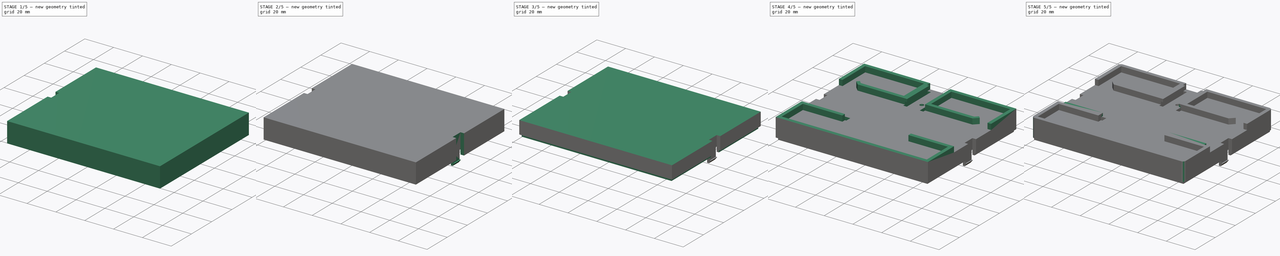
[diagram: build sequence overview — one tinted view per stage of 5, left to right]
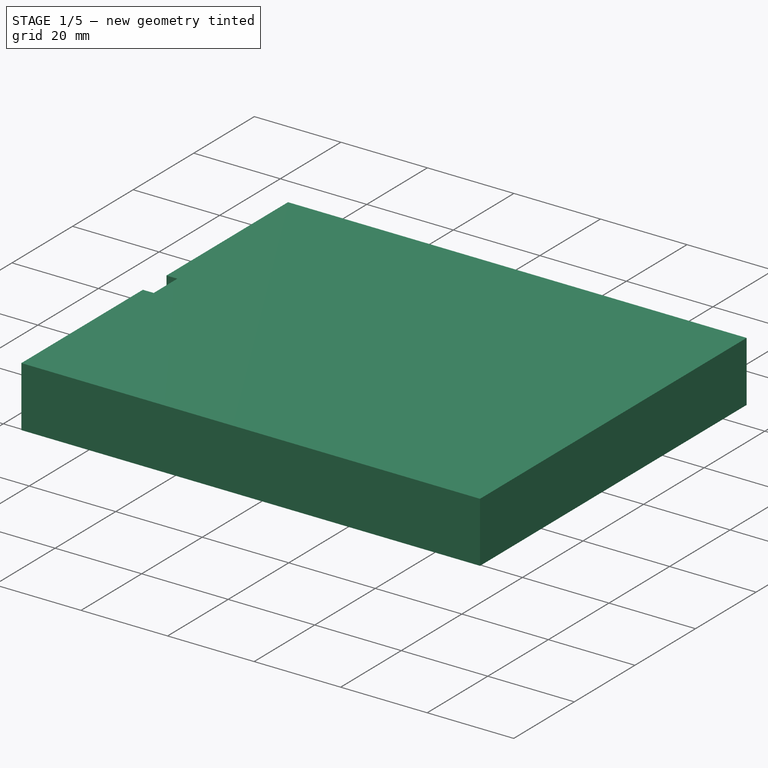
[diagram: stage 1 of 5 — iso view after this stage's code; geometry added in this stage tinted green]
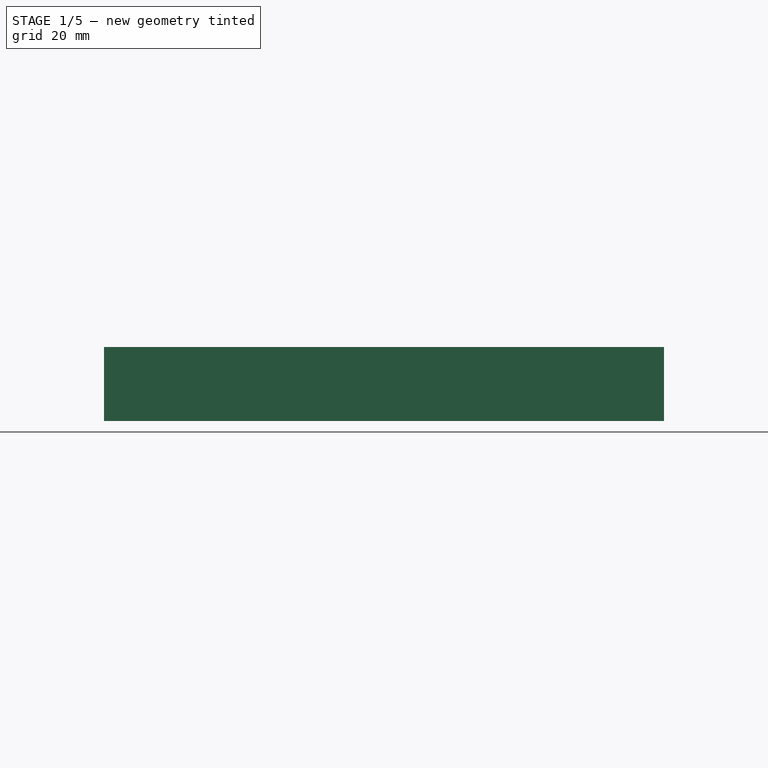
[diagram: stage 1 of 5 — front view after this stage's code; geometry added in this stage tinted green]
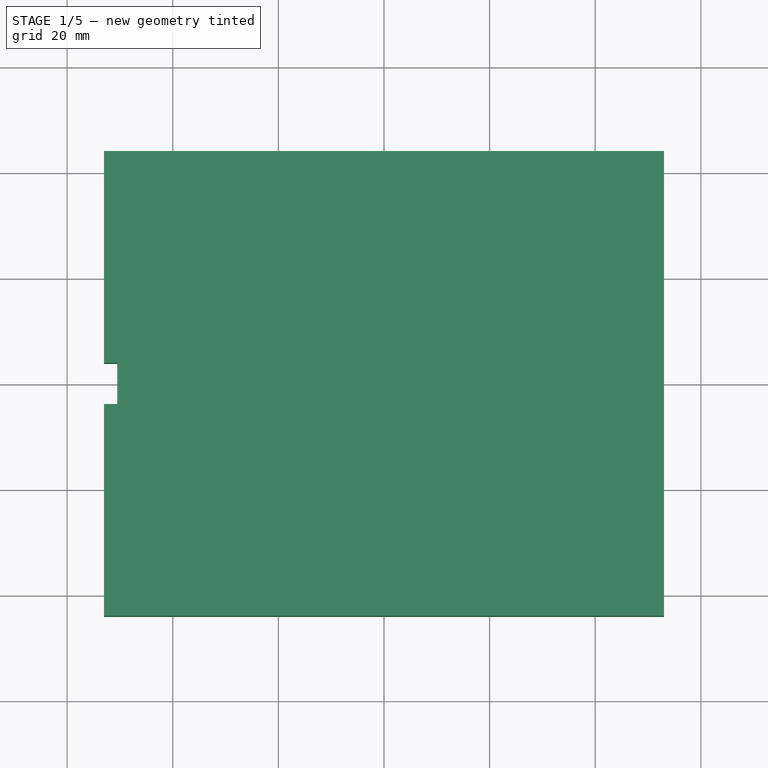
[diagram: stage 1 of 5 — top view after this stage's code; geometry added in this stage tinted green]
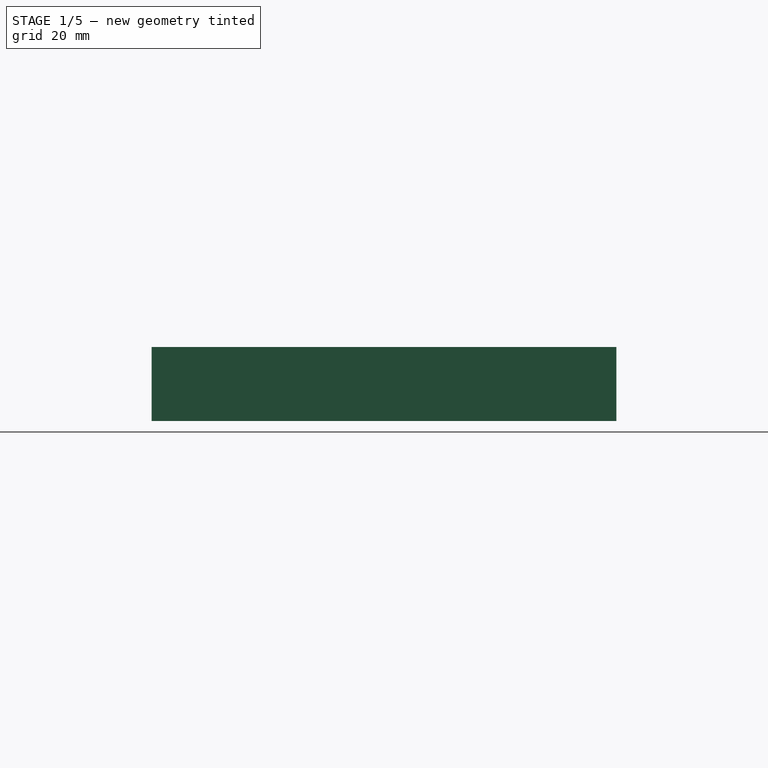
[diagram: stage 1 of 5 — right view after this stage's code; geometry added in this stage tinted green]
FCSTD DOCUMENT  (FreeCAD 1.0R39319 (Git))
Label: Under Perfect PLC
License: All rights reserved
LicenseURL: https://en.wikipedia.org/wiki/All_rights_reserved
objects: Sketcher::SketchObject×13, PartDesign::Pad×7, PartDesign::Pocket×5, PartDesign::Mirrored×2, PartDesign::Fillet×1, PartDesign::Body×1
note: 70 computed .brp shape members not serialized (recipe doc carries the construction recipe); baked Part::Feature solids carry a one-line shape summary decoded from their .brp

FEATURE [Sketcher::SketchObject] Sketch
  ArcFitTolerance = 1e-06
  AttachmentSupport = -> [XY_Plane]
  FullyConstrained = true
  MakeInternals = false
  MapMode = 5
  sketch-geometry (10):
    g0: LineSegment StartX=-53 StartY=-44 StartZ=0 EndX=53 EndY=-44 EndZ=0
    g1: LineSegment StartX=53 StartY=-44 StartZ=0 EndX=53 EndY=44 EndZ=0
    g2: LineSegment StartX=53 StartY=44 StartZ=0 EndX=-53 EndY=44 EndZ=0
    g3: LineSegment StartX=-53 StartY=44 StartZ=0 EndX=-53 EndY=-44 EndZ=0
    g4: GeomPoint [constr] X=0 Y=0 Z=0
    g5: LineSegment StartX=-50.5 StartY=-41.5 StartZ=0 EndX=50.5 EndY=-41.5 EndZ=0
    g6: LineSegment StartX=50.5 StartY=-41.5 StartZ=0 EndX=50.5 EndY=41.5 EndZ=0
    g7: LineSegment StartX=50.5 StartY=41.5 StartZ=0 EndX=-50.5 EndY=41.5 EndZ=0
    g8: LineSegment StartX=-50.5 StartY=41.5 StartZ=0 EndX=-50.5 EndY=-41.5 EndZ=0
    g9: GeomPoint [constr] X=0 Y=0 Z=0
  constraints (24):
    c: Coincident(g0,g1)
    c: Coincident(g1,g2)
    c: Coincident(g2,g3)
    c: Coincident(g3,g0)
    c: Horizontal(g0)
    c: Horizontal(g2)
    c: Vertical(g1)
    c: Vertical(g3)
    c: Symmetric(g2,g0,g4)
    c: Distance(g1,g3) = 106
    c: Distance(g0,g2) = 88
    c: Coincident(g4,g-1)
    c: Coincident(g5,g6)
    c: Coincident(g6,g7)
    c: Coincident(g7,g8)
    c: Coincident(g8,g5)
    c: Horizontal(g5)
    c: Horizontal(g7)
    c: Vertical(g6)
    c: Vertical(g8)
    c: Symmetric(g7,g5,g9)
    c: Distance(g6,g8) = 101
    c: Distance(g5,g7) = 83
    c: Coincident(g9,g4)
FEATURE [PartDesign::Pad] Pad
  Direction = (0,0,1)
  Length = 14
  Length2 = 10
  Profile = -> Sketch [Edge3,Edge4,Edge1,Edge2]
  ReferenceAxis = -> Sketch [N_Axis]
  Refine = true
  Suppressed = false
  Type = 0
FEATURE [PartDesign::Pocket] Pocket
  BaseFeature = -> Pad
  Direction = (0,0,-1)
  Length = 7.7
  Length2 = 5
  Profile = -> Sketch [Edge8,Edge5,Edge6,Edge7]
  ReferenceAxis = -> Sketch [N_Axis]
  Refine = true
  Reversed = true
  Suppressed = false
  Type = 0
FEATURE [Sketcher::SketchObject] Sketch001
  ArcFitTolerance = 1e-06
  AttachmentSupport = -> [Pocket]
  ExternalGeometry = -> [Pocket]
  FullyConstrained = true
  MakeInternals = false
  MapMode = 5
  Placement = pos=(0,0,0) rot=(1,0,0;3.14159rad)
  sketch-geometry (4):
    g0: LineSegment StartX=-53 StartY=-3.9 StartZ=0 EndX=-50.5 EndY=-3.9 EndZ=0
    g1: LineSegment StartX=-50.5 StartY=-3.9 StartZ=0 EndX=-50.5 EndY=3.9 EndZ=0
    g2: LineSegment StartX=-50.5 StartY=3.9 StartZ=0 EndX=-53 EndY=3.9 EndZ=0
    g3: LineSegment StartX=-53 StartY=3.9 StartZ=0 EndX=-53 EndY=-3.9 EndZ=0
  constraints (11):
    c: Coincident(g0,g1)
    c: Coincident(g1,g2)
    c: Coincident(g2,g3)
    c: Coincident(g3,g0)
    c: Horizontal(g0)
    c: Horizontal(g2)
    c: Vertical(g3)
    c: PointOnObject(g0,g-4)
    c: PointOnObject(g1,g-3)
    c: Symmetric(g0,g1,g-1)
    c: Distance(g3,g3) = 7.8
FEATURE [PartDesign::Pocket] Pocket001
  BaseFeature = -> Pocket
  Direction = (0,0,1)
  Length = 5
  Length2 = 5
  Profile = -> Sketch001
  ReferenceAxis = -> Sketch001 [N_Axis]
  Refine = true
  Suppressed = false
  Type = 1
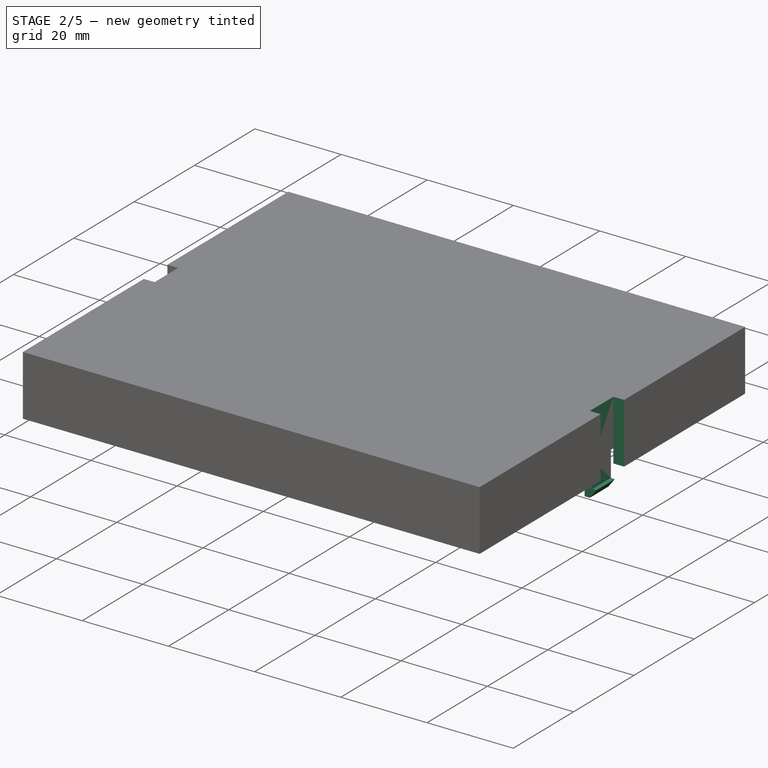
[diagram: stage 2 of 5 — iso view after this stage's code; geometry added in this stage tinted green]
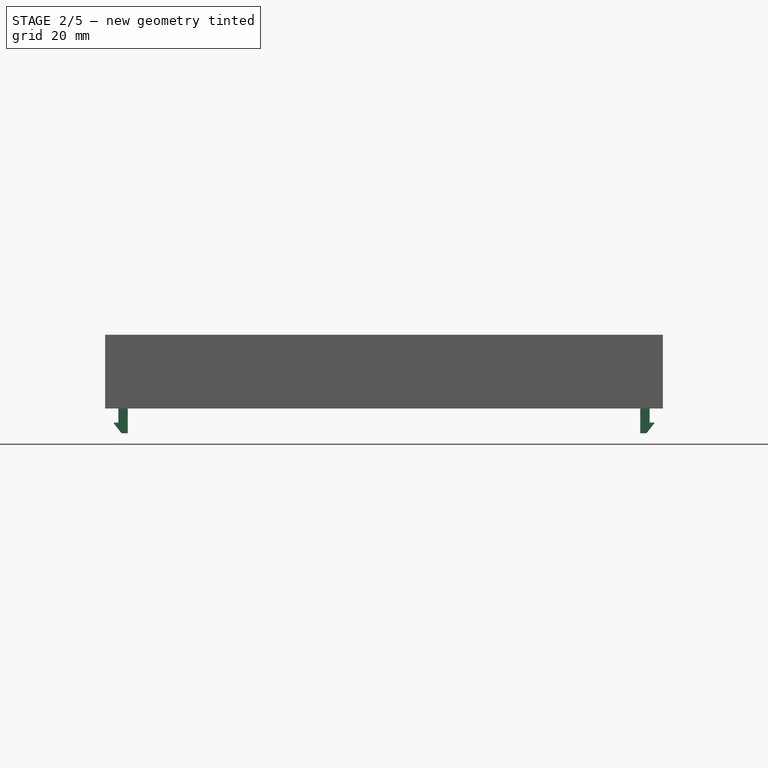
[diagram: stage 2 of 5 — front view after this stage's code; geometry added in this stage tinted green]
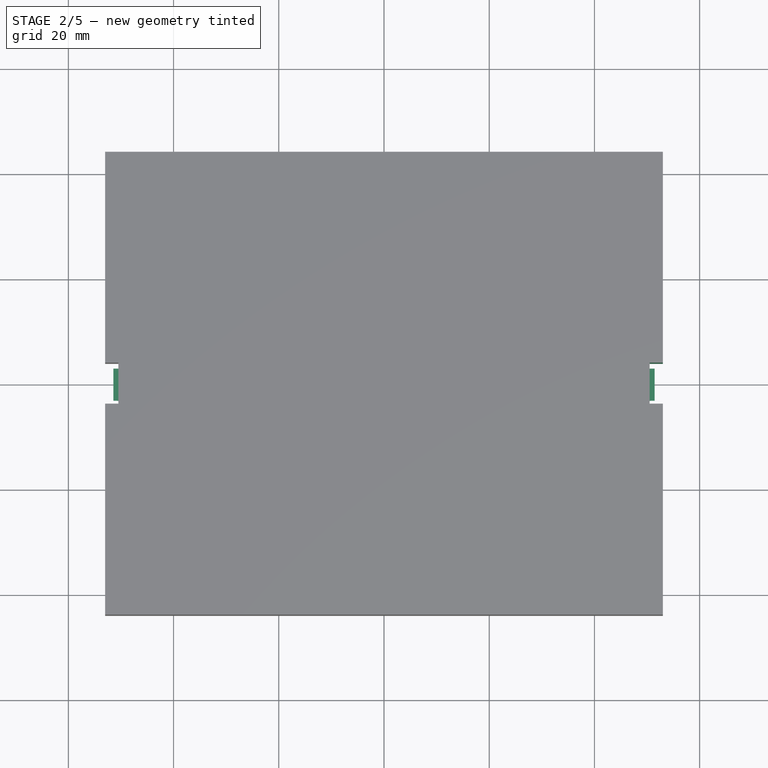
[diagram: stage 2 of 5 — top view after this stage's code; geometry added in this stage tinted green]
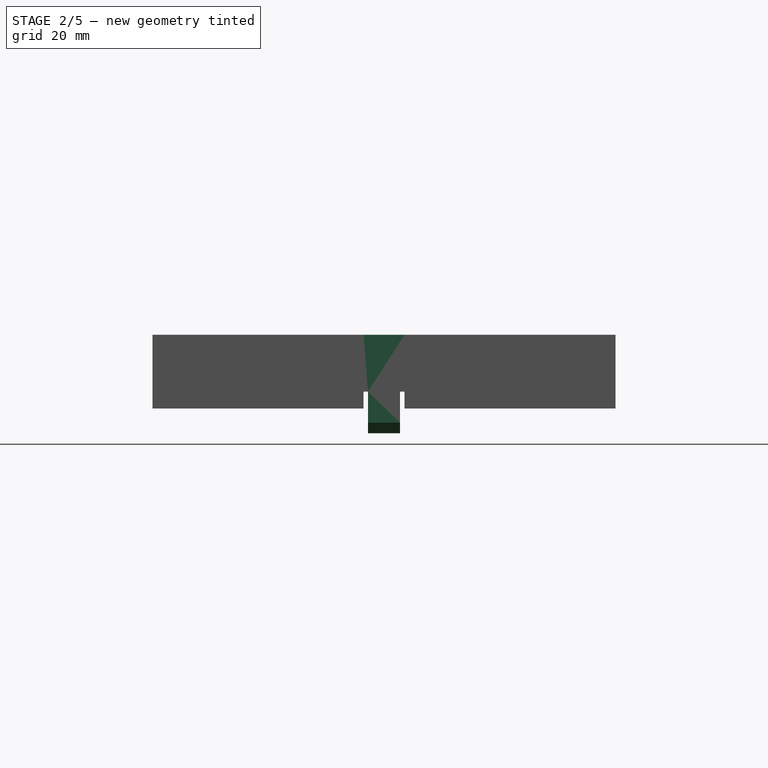
[diagram: stage 2 of 5 — right view after this stage's code; geometry added in this stage tinted green]
FEATURE [Sketcher::SketchObject] Sketch002
  ArcFitTolerance = 1e-06
  AttachmentSupport = -> [Pocket001]
  ExternalGeometry = -> [Pocket001]
  FullyConstrained = true
  MakeInternals = false
  MapMode = 5
  Placement = pos=(0,0,7.7) rot=(1,0,0;3.14159rad)
  sketch-geometry (4):
    g0: LineSegment StartX=-50.5 StartY=5.5 StartZ=0 EndX=-50.5 EndY=-5.5 EndZ=0
    g1: LineSegment StartX=-50.5 StartY=-5.5 StartZ=0 EndX=-48.7 EndY=-5.5 EndZ=0
    g2: LineSegment StartX=-48.7 StartY=-5.5 StartZ=0 EndX=-48.7 EndY=5.5 EndZ=0
    g3: LineSegment StartX=-48.7 StartY=5.5 StartZ=0 EndX=-50.5 EndY=5.5 EndZ=0
  constraints (11):
    c: Coincident(g0,g1)
    c: Coincident(g1,g2)
    c: Coincident(g2,g3)
    c: Coincident(g3,g0)
    c: Vertical(g0)
    c: Horizontal(g1)
    c: Horizontal(g3)
    c: PointOnObject(g0,g-4)
    c: Symmetric(g1,g2,g-1)
    c: Distance(g0,g0) = 11
    c: DistanceX(g3,g3) = 1.8
FEATURE [PartDesign::Pad] Pad001
  BaseFeature = -> Pocket001
  Direction = (0,0,-1)
  Length = 4.5
  Length2 = 10
  Profile = -> Sketch002
  ReferenceAxis = -> Sketch002 [N_Axis]
  Refine = true
  Suppressed = false
  Type = 0
FEATURE [Sketcher::SketchObject] Sketch003
  ArcFitTolerance = 1e-06
  AttachmentSupport = -> [XZ_Plane]
  ExternalGeometry = -> [Pad001]
  FullyConstrained = true
  MakeInternals = false
  MapMode = 5
  Placement = pos=(0,0,0) rot=(1,0,0;1.5708rad)
  sketch-geometry (6):
    g0: LineSegment StartX=-48.7 StartY=3.2 StartZ=0 EndX=-48.7 EndY=-4.7 EndZ=0
    g1: LineSegment StartX=-48.7 StartY=-4.7 StartZ=0 EndX=-49.9 EndY=-4.7 EndZ=0
    g2: LineSegment StartX=-49.9 StartY=-4.7 StartZ=0 EndX=-51.45 EndY=-2.7 EndZ=0
    g3: LineSegment StartX=-51.45 StartY=-2.7 StartZ=0 EndX=-50.5 EndY=-2.7 EndZ=0
    g4: LineSegment StartX=-50.5 StartY=-2.7 StartZ=0 EndX=-50.5 EndY=3.2 EndZ=0
    g5: LineSegment StartX=-50.5 StartY=3.2 StartZ=0 EndX=-48.7 EndY=3.2 EndZ=0
  constraints (17):
    c: Coincident(g0,g-4)
    c: Vertical(g0)
    c: Coincident(g1,g0)
    c: Coincident(g2,g1)
    c: Coincident(g3,g2)
    c: Horizontal(g3)
    c: Coincident(g4,g3)
    c: Coincident(g4,g-3)
    c: PointOnObject(g5,g0)
    c: Horizontal(g1)
    c: Horizontal(g5)
    c: Coincident(g5,g4)
    c: DistanceY(g0,g0) = 7.9
    c: Vertical(g4)
    c: DistanceX(g2,g0) = 2.75
    c: Distance(g3,g1) = 2
    c: Distance(g1,g1) = 1.2
FEATURE [PartDesign::Pad] Pad002
  BaseFeature = -> Pad001
  Direction = (0,-1,2e-16)
  Length = 6.1
  Length2 = 10
  Midplane = true
  Profile = -> Sketch003
  ReferenceAxis = -> Sketch003 [N_Axis]
  Refine = true
  Suppressed = false
  Type = 0
FEATURE [PartDesign::Mirrored] Mirrored
  BaseFeature = -> Pad002
  MirrorPlane = -> Sketch002 [V_Axis]
  Originals = -> [Pad001,Pad002,Pocket001]
  Refine = true
  Suppressed = false
  TransformMode = 0
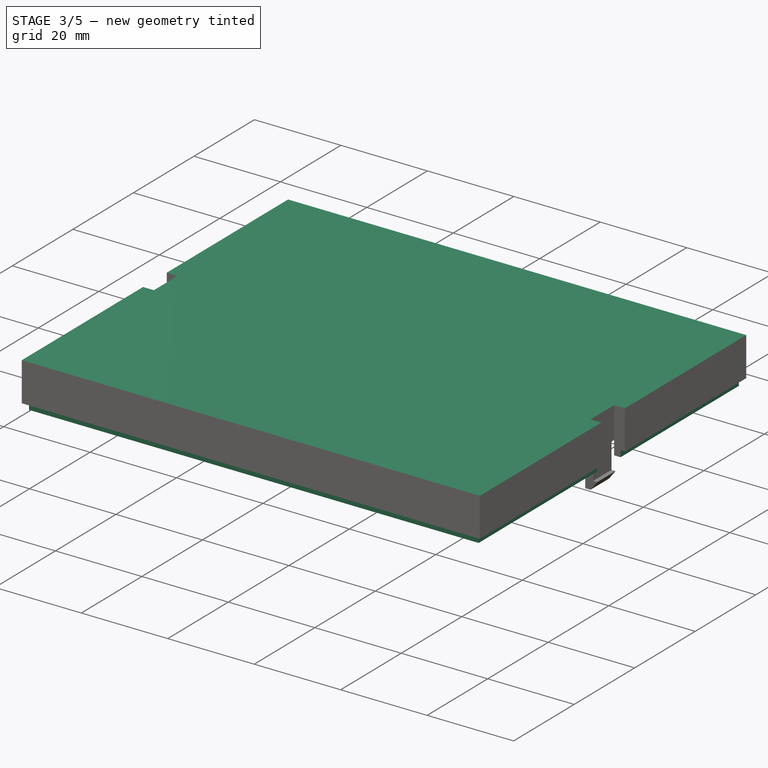
[diagram: stage 3 of 5 — iso view after this stage's code; geometry added in this stage tinted green]
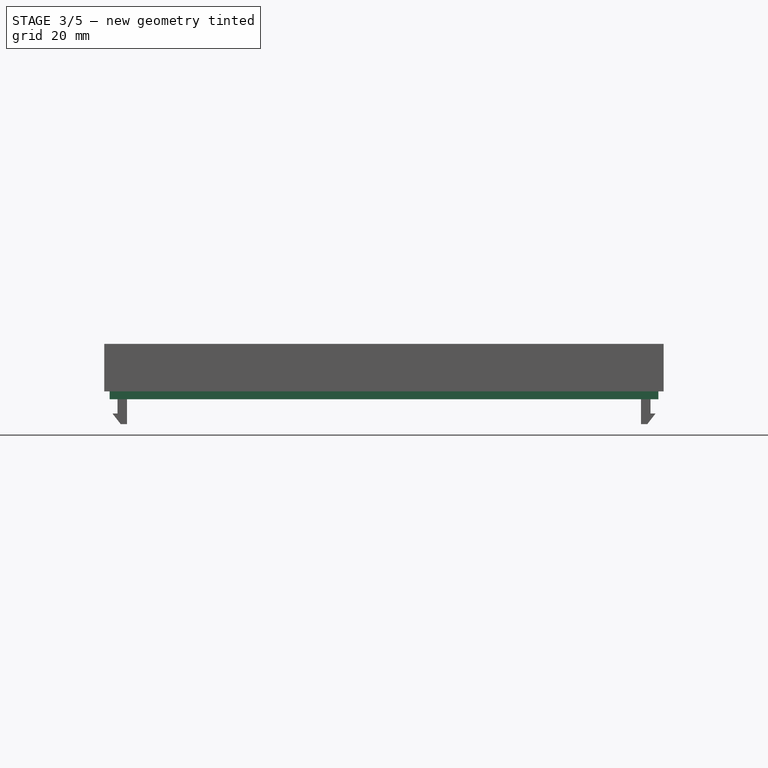
[diagram: stage 3 of 5 — front view after this stage's code; geometry added in this stage tinted green]
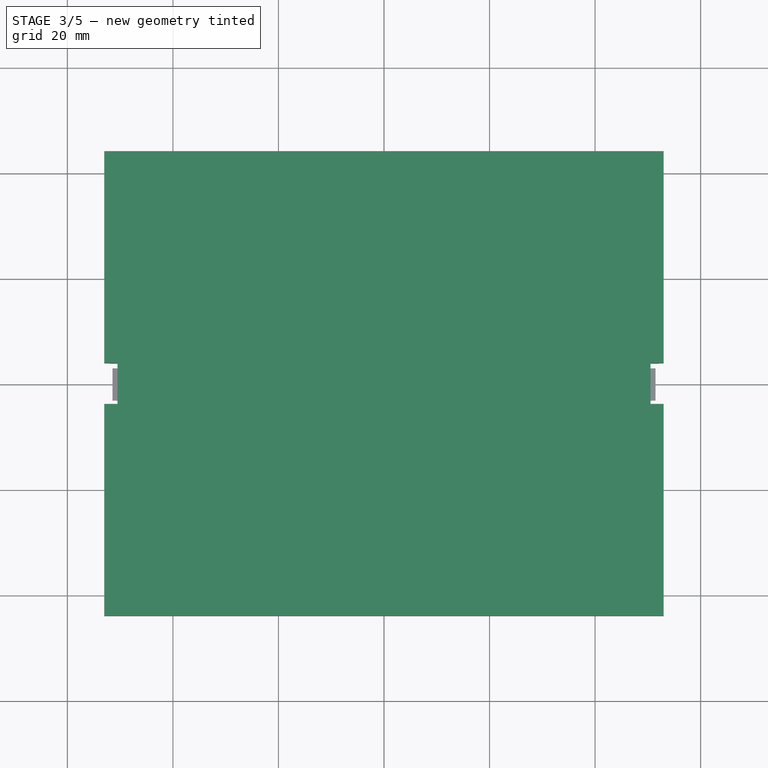
[diagram: stage 3 of 5 — top view after this stage's code; geometry added in this stage tinted green]
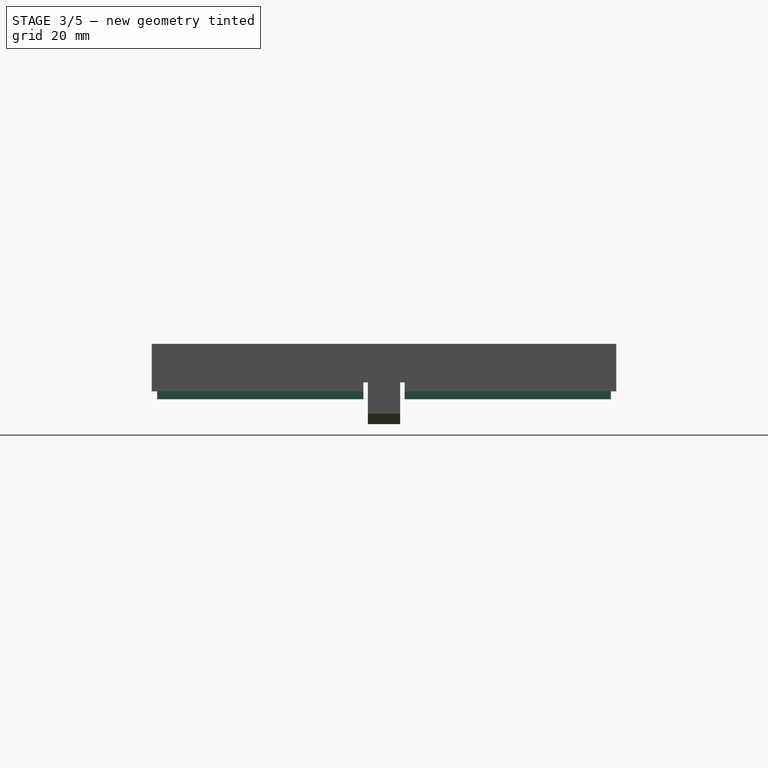
[diagram: stage 3 of 5 — right view after this stage's code; geometry added in this stage tinted green]
FEATURE [Sketcher::SketchObject] Sketch004
  ArcFitTolerance = 1e-06
  AttachmentSupport = -> [Mirrored]
  FullyConstrained = true
  MakeInternals = false
  MapMode = 5
  Placement = pos=(-53,0,0) rot=(0.57735,-0.57735,-0.57735;2.0944rad)
FEATURE [Sketcher::SketchObject] Sketch005
  ArcFitTolerance = 1e-06
  AttachmentSupport = -> [Mirrored]
  ExternalGeometry = -> [Mirrored]
  FullyConstrained = true
  MakeInternals = false
  MapMode = 5
  Placement = pos=(0,0,0) rot=(1,0,0;3.14159rad)
  sketch-geometry (8):
    g0: LineSegment StartX=-53 StartY=44 StartZ=0 EndX=-53 EndY=-44 EndZ=0
    g1: LineSegment StartX=-53 StartY=-44 StartZ=0 EndX=53 EndY=-44 EndZ=0
    g2: LineSegment StartX=53 StartY=-44 StartZ=0 EndX=53 EndY=44 EndZ=0
    g3: LineSegment StartX=53 StartY=44 StartZ=0 EndX=-53 EndY=44 EndZ=0
    g4: LineSegment StartX=-52 StartY=43 StartZ=0 EndX=-52 EndY=-43 EndZ=0
    g5: LineSegment StartX=-52 StartY=-43 StartZ=0 EndX=52 EndY=-43 EndZ=0
    g6: LineSegment StartX=52 StartY=-43 StartZ=0 EndX=52 EndY=43 EndZ=0
    g7: LineSegment StartX=52 StartY=43 StartZ=0 EndX=-52 EndY=43 EndZ=0
  constraints (20):
    c: Coincident(g0,g1)
    c: Coincident(g1,g2)
    c: Coincident(g2,g3)
    c: Coincident(g3,g0)
    c: Vertical(g0)
    c: Vertical(g2)
    c: Horizontal(g1)
    c: Horizontal(g3)
    c: Coincident(g0,g-3)
    c: Coincident(g1,g-4)
    c: Coincident(g4,g5)
    c: Coincident(g5,g6)
    c: Coincident(g6,g7)
    c: Coincident(g7,g4)
    c: Vertical(g4)
    c: Horizontal(g7)
    c: Distance(g6,g2) = 1
    c: Distance(g1,g5) = 1
    c: Symmetric(g5,g6,g-1)
    c: Symmetric(g5,g4,g-2)
FEATURE [PartDesign::Pocket] Pocket002
  BaseFeature = -> Mirrored
  Direction = (0,0,1)
  Length = 1.5
  Length2 = 5
  Profile = -> Sketch005
  ReferenceAxis = -> Sketch005 [N_Axis]
  Refine = true
  Suppressed = false
  Type = 0
FEATURE [Sketcher::SketchObject] Sketch006
  ArcFitTolerance = 1e-06
  AttachmentSupport = -> [Pocket002]
  FullyConstrained = true
  MakeInternals = false
  MapMode = 5
  Placement = pos=(0,0,7.7) rot=(1,0,0;3.14159rad)
  sketch-geometry (4):
    g0: Circle CenterX=42.5 CenterY=25 CenterZ=0 NormalX=0 NormalY=0 NormalZ=1 AngleXU=0 Radius=1.2
    g1: Circle CenterX=-42.5 CenterY=-25 CenterZ=0 NormalX=0 NormalY=0 NormalZ=1 AngleXU=0 Radius=1.2
    g2: Circle CenterX=-42.5 CenterY=-25 CenterZ=0 NormalX=0 NormalY=0 NormalZ=1 AngleXU=0 Radius=2.5
    g3: Circle CenterX=42.5 CenterY=25 CenterZ=0 NormalX=0 NormalY=0 NormalZ=1 AngleXU=0 Radius=2.5
  constraints (10):
    c: Equal(g0,g1)
    c: Diameter(g0) = 2.4
    c: Diameter(g2) = 5
    c: Coincident(g2,g1)
    c: Coincident(g3,g0)
    c: Equal(g2,g3)
    c: Distance(g1,g-1) = 25
    c: Distance(g1,g-2) = 42.5
    c: Distance(g0,g-1) = 25
    c: Distance(g0,g-2) = 42.5
FEATURE [PartDesign::Pad] Pad003
  BaseFeature = -> Pocket002
  Direction = (0,0,-1)
  Length = 6
  Length2 = 10
  Profile = -> Sketch006 [Edge3,Edge2,Edge1,Edge4]
  ReferenceAxis = -> Sketch006 [N_Axis]
  Refine = true
  Suppressed = false
  Type = 0
FEATURE [Sketcher::SketchObject] Sketch008
  ArcFitTolerance = 1e-06
  AttachmentSupport = -> [Pad003]
  ExternalGeometry = -> [Pad003]
  FullyConstrained = true
  MakeInternals = false
  MapMode = 5
  Placement = pos=(0,0,14) rot=(0,0,1;0rad)
  sketch-geometry (39):
    g0: LineSegment StartX=-53 StartY=18.9 StartZ=0 EndX=-50.5 EndY=18.9 EndZ=0
    g1: LineSegment StartX=-50.5 StartY=18.9 StartZ=0 EndX=-50.5 EndY=41.5 EndZ=0
    g2: LineSegment StartX=-50.5 StartY=41.5 StartZ=0 EndX=-9.5 EndY=41.5 EndZ=0
    g3: LineSegment StartX=-9.5 StartY=41.5 StartZ=0 EndX=-9.5 EndY=21.4 EndZ=0
    g4: LineSegment StartX=-9.5 StartY=21.4 StartZ=0 EndX=-39.5 EndY=21.4 EndZ=0
    g5: LineSegment StartX=-39.5 StartY=21.4 StartZ=0 EndX=-41.5 EndY=23.4 EndZ=0
    g6: LineSegment StartX=-41.5 StartY=23.4 StartZ=0 EndX=-43 EndY=21.9 EndZ=0
    g7: LineSegment StartX=-43 StartY=21.9 StartZ=0 EndX=-40 EndY=18.9 EndZ=0
    g8: LineSegment StartX=-40 StartY=18.9 StartZ=0 EndX=-7 EndY=18.9 EndZ=0
    g9: LineSegment StartX=-7 StartY=18.9 StartZ=0 EndX=-7 EndY=44 EndZ=0
    g10: LineSegment StartX=-7 StartY=44 StartZ=0 EndX=-53 EndY=44 EndZ=0
    g11: LineSegment StartX=-53 StartY=44 StartZ=0 EndX=-53 EndY=18.9 EndZ=0
    g12: LineSegment [constr] StartX=-50.5 StartY=18.9 StartZ=0 EndX=-40 EndY=18.9 EndZ=0
    g13: LineSegment StartX=-23 StartY=-20.5 StartZ=0 EndX=-23 EndY=-18 EndZ=0
    g14: LineSegment StartX=-23 StartY=-18 StartZ=0 EndX=-53 EndY=-18 EndZ=0
    g15: LineSegment StartX=-53 StartY=-18 StartZ=0 EndX=-53 EndY=-44 EndZ=0
    g16: LineSegment StartX=0 StartY=-41.5 StartZ=0 EndX=-50.5 EndY=-41.5 EndZ=0
    g17: LineSegment StartX=-50.5 StartY=-41.5 StartZ=0 EndX=-50.5 EndY=-20.5 EndZ=0
    g18: LineSegment StartX=-50.5 StartY=-20.5 StartZ=0 EndX=-23 EndY=-20.5 EndZ=0
    g19: LineSegment StartX=53 StartY=18.9 StartZ=0 EndX=50.5 EndY=18.9 EndZ=0
    g20: LineSegment StartX=50.5 StartY=18.9 StartZ=0 EndX=50.5 EndY=41.5 EndZ=0
    g21: LineSegment StartX=50.5 StartY=41.5 StartZ=0 EndX=9.5 EndY=41.5 EndZ=0
    g22: LineSegment StartX=9.5 StartY=41.5 StartZ=0 EndX=9.5 EndY=21.4 EndZ=0
    g23: LineSegment StartX=9.5 StartY=21.4 StartZ=0 EndX=39.5 EndY=21.4 EndZ=0
    g24: LineSegment StartX=39.5 StartY=21.4 StartZ=0 EndX=41.5 EndY=23.4 EndZ=0
    g25: LineSegment StartX=41.5 StartY=23.4 StartZ=0 EndX=43 EndY=21.9 EndZ=0
    g26: LineSegment StartX=43 StartY=21.9 StartZ=0 EndX=40 EndY=18.9 EndZ=0
    g27: LineSegment StartX=40 StartY=18.9 StartZ=0 EndX=7 EndY=18.9 EndZ=0
    g28: LineSegment StartX=7 StartY=18.9 StartZ=0 EndX=7 EndY=44 EndZ=0
    g29: LineSegment StartX=7 StartY=44 StartZ=0 EndX=53 EndY=44 EndZ=0
    g30: LineSegment StartX=53 StartY=44 StartZ=0 EndX=53 EndY=18.9 EndZ=0
    g31: LineSegment [constr] StartX=50.5 StartY=18.9 StartZ=0 EndX=40 EndY=18.9 EndZ=0
    g32: LineSegment StartX=23 StartY=-20.5 StartZ=0 EndX=23 EndY=-18 EndZ=0
    g33: LineSegment StartX=23 StartY=-18 StartZ=0 EndX=53 EndY=-18 EndZ=0
    g34: LineSegment StartX=53 StartY=-18 StartZ=0 EndX=53 EndY=-44 EndZ=0
    g35: LineSegment StartX=0 StartY=-41.5 StartZ=0 EndX=50.5 EndY=-41.5 EndZ=0
    g36: LineSegment StartX=50.5 StartY=-41.5 StartZ=0 EndX=50.5 EndY=-20.5 EndZ=0
    g37: LineSegment StartX=50.5 StartY=-20.5 StartZ=0 EndX=23 EndY=-20.5 EndZ=0
    g38: LineSegment StartX=-53 StartY=-44 StartZ=0 EndX=53 EndY=-44 EndZ=0
  constraints (110):
    c: Coincident(g0,g1)
    c: Vertical(g1)
    c: Coincident(g1,g2)
    c: Horizontal(g2)
    c: Coincident(g2,g3)
    c: Vertical(g3)
    c: Coincident(g3,g4)
    c: Horizontal(g4)
    c: Coincident(g4,g5)
    c: Coincident(g5,g6)
    c: Coincident(g6,g7)
    c: Coincident(g7,g8)
    c: Horizontal(g8)
    c: Coincident(g8,g9)
    c: Vertical(g9)
    c: Coincident(g9,g10)
    c: Coincident(g10,g11)
    c: Coincident(g11,g0)
    c: Horizontal(g0)
    c: Coincident(g12,g0)
    c: Coincident(g12,g7)
    c: Horizontal(g12)
    c: Distance(g0,g0) = 2.5
    c: Parallel(g5,g7)
    c: Distance(g10,g2) = 2.5
    c: Distance(g9,g3) = 2.5
    c: DistanceX(g10,g10) = 46
    c: DistanceX(g6,g8) = 36
    c: DistanceX(g4,g4) = 30
    c: Distance(g4,g8) = 2.5
    c: DistanceX(g8,g8) = 33
    c: Angle(g8,g7) = 2.35619
    c: Angle(g7,g6) = 1.5708
    c: Coincident(g10,g-4)
    c: Horizontal(g10)
    c: Vertical(g11)
    c: Distance(g-5,g0) = 15
    c: Vertical(g13)
    c: Coincident(g13,g14)
    c: PointOnObject(g14,g-6)
    c: Horizontal(g14)
    c: Coincident(g14,g15)
    c: Coincident(g15,g-7)
    c: PointOnObject(g16,g-2)
    c: Horizontal(g16)
    c: Coincident(g16,g17)
    c: Vertical(g17)
    c: Coincident(g17,g18)
    c: Coincident(g18,g13)
    c: Horizontal(g18)
    c: Distance(g15,g17) = 2.5
    c: DistanceY(g13,g13) = 2.5
    c: Distance(g15,g14) = 26
    c: Distance(g13,g15) = 30
    c: Coincident(g19,g20)
    c: Vertical(g20)
    c: Coincident(g20,g21)
    c: Horizontal(g21)
    c: Coincident(g21,g22)
    c: Vertical(g22)
    c: Coincident(g22,g23)
    c: Horizontal(g23)
    c: Coincident(g23,g24)
    c: Coincident(g24,g25)
    c: Coincident(g25,g26)
    c: Coincident(g26,g27)
    c: Horizontal(g27)
    c: Coincident(g27,g28)
    c: Vertical(g28)
    c: Coincident(g28,g29)
    c: Coincident(g29,g30)
    c: Coincident(g30,g19)
    c: Horizontal(g19)
    c: Coincident(g31,g19)
    c: Coincident(g31,g26)
    c: Horizontal(g31)
    c: Distance(g19,g19) = 2.5
    c: Parallel(g24,g26)
    c: Distance(g29,g21) = 2.5
    c: Distance(g28,g22) = 2.5
    c: Distance(g23,g27) = 2.5
    c: Angle(g27,g26) = -2.35619
    c: Angle(g26,g25) = -1.5708
    c: Horizontal(g29)
    c: Vertical(g30)
    c: Vertical(g32)
    c: Coincident(g32,g33)
    c: Horizontal(g33)
    c: Coincident(g33,g34)
    c: Horizontal(g35)
    c: Coincident(g35,g36)
    c: Vertical(g36)
    c: Coincident(g36,g37)
    c: Coincident(g37,g32)
    c: Horizontal(g37)
    c: Distance(g34,g36) = 2.5
    c: Distance(g34,g33) = 26
    c: Distance(g32,g34) = 30
    c: Coincident(g38,g34)
    c: Coincident(g34,g-8)
    c: PointOnObject(g33,g-8)
    c: Coincident(g35,g16)
    c: Symmetric(g27,g8,g-2)
    c: Equal(g7,g26)
    c: Equal(g27,g8)
    c: Equal(g23,g4)
    c: Equal(g36,g17)
    c: Coincident(g38,g15)
    c: Distance(g38,g35) = 2.5
    c: Coincident(g29,g-9)
FEATURE [Sketcher::SketchObject] Sketch009
  ArcFitTolerance = 1e-06
  AttachmentSupport = -> [Pad003]
  ExternalGeometry = -> [Pad003]
  FullyConstrained = true
  MakeInternals = false
  MapMode = 5
  Placement = pos=(0,0,14) rot=(0,0,1;0rad)
  sketch-geometry (4):
    g0: LineSegment StartX=-53 StartY=-44 StartZ=0 EndX=53 EndY=-44 EndZ=0
    g1: LineSegment StartX=53 StartY=-44 StartZ=0 EndX=53 EndY=44 EndZ=0
    g2: LineSegment StartX=53 StartY=44 StartZ=0 EndX=-53 EndY=44 EndZ=0
    g3: LineSegment StartX=-53 StartY=44 StartZ=0 EndX=-53 EndY=-44 EndZ=0
  constraints (10):
    c: Coincident(g0,g1)
    c: Coincident(g1,g2)
    c: Coincident(g2,g3)
    c: Coincident(g3,g0)
    c: Horizontal(g0)
    c: Horizontal(g2)
    c: Vertical(g1)
    c: Vertical(g3)
    c: Coincident(g0,g-3)
    c: Coincident(g1,g-4)
FEATURE [PartDesign::Pocket] Pocket003
  BaseFeature = -> Pad003
  Direction = (0,0,-1)
  Length = 3.5
  Length2 = 5
  Profile = -> Sketch009
  ReferenceAxis = -> Sketch009 [N_Axis]
  Refine = true
  Suppressed = false
  Type = 0
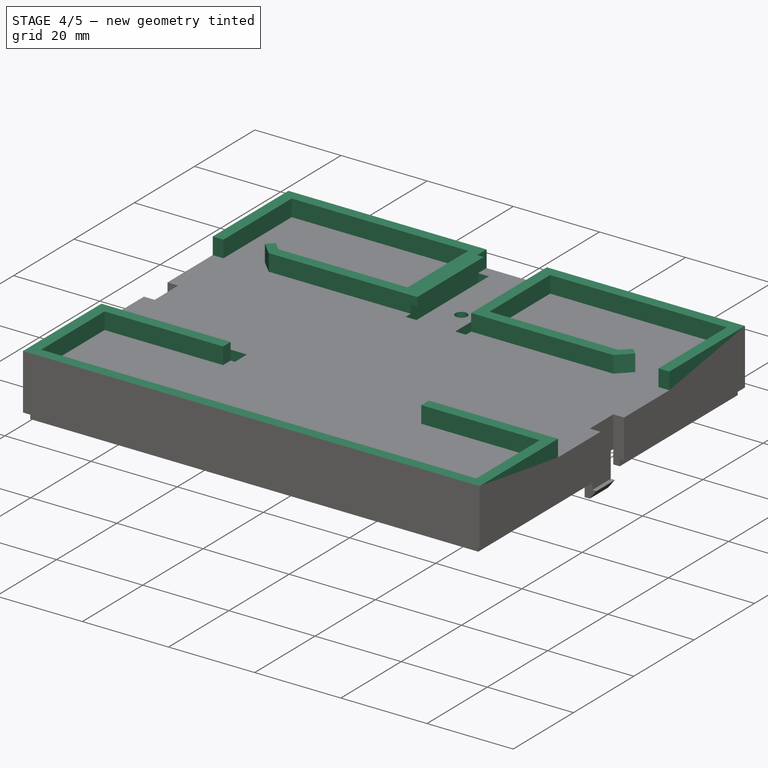
[diagram: stage 4 of 5 — iso view after this stage's code; geometry added in this stage tinted green]
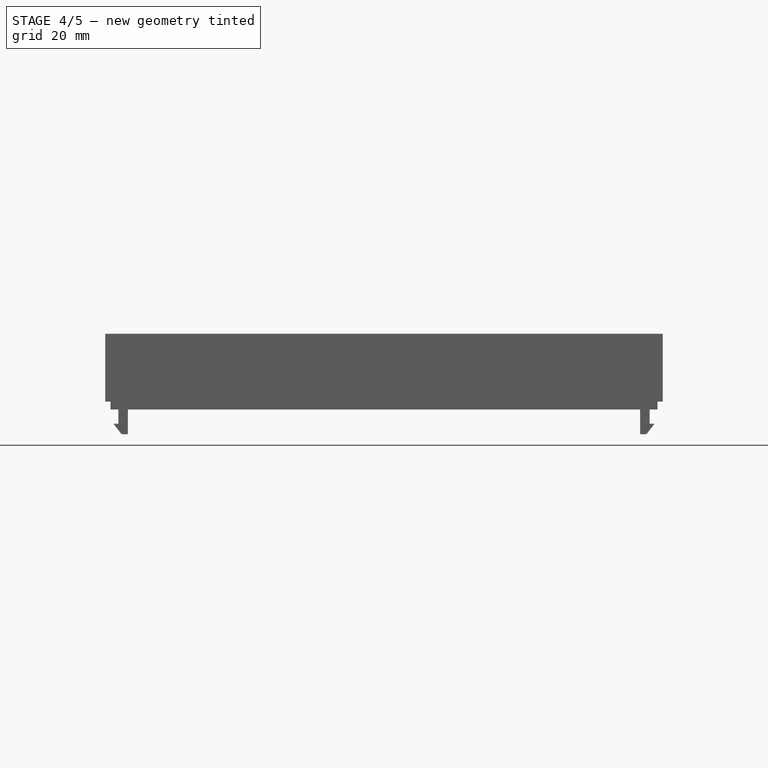
[diagram: stage 4 of 5 — front view after this stage's code; geometry added in this stage tinted green]
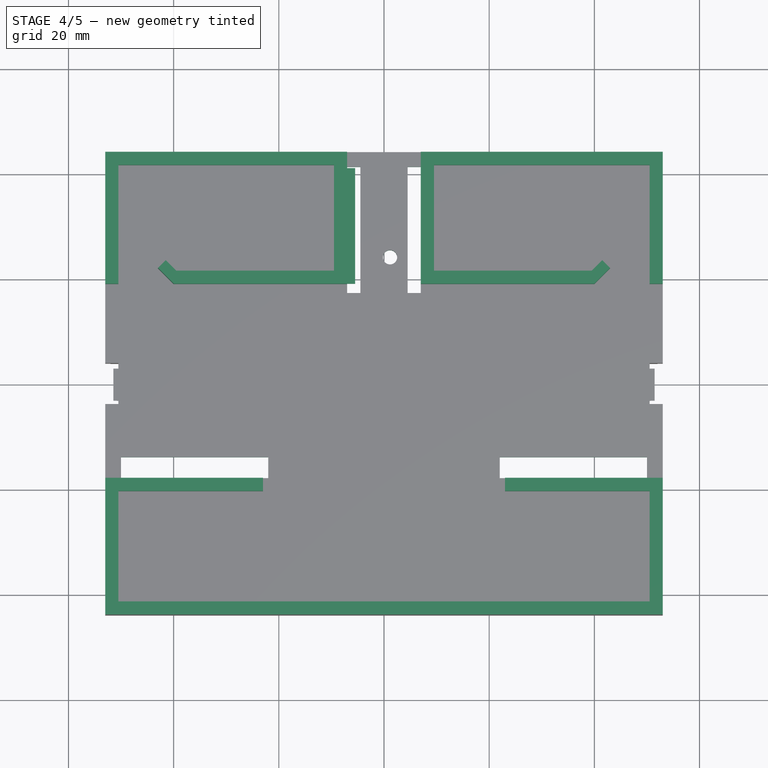
[diagram: stage 4 of 5 — top view after this stage's code; geometry added in this stage tinted green]
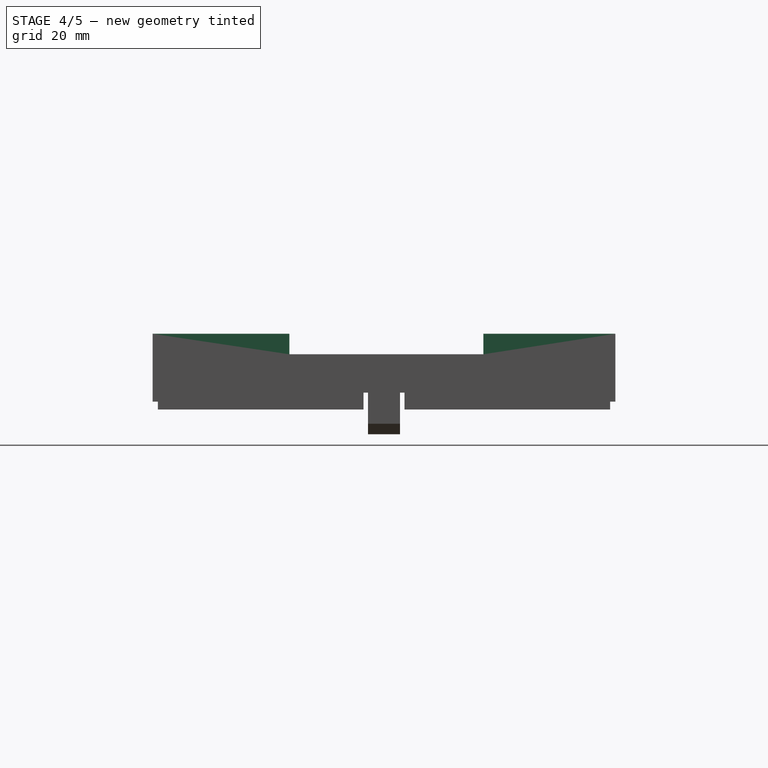
[diagram: stage 4 of 5 — right view after this stage's code; geometry added in this stage tinted green]
FEATURE [Sketcher::SketchObject] Sketch010
  ArcFitTolerance = 1e-06
  AttachmentSupport = -> [Pocket003]
  ExternalGeometry = -> [Pocket003]
  FullyConstrained = true
  MakeInternals = false
  MapMode = 5
  Placement = pos=(0,0,10.5) rot=(0,0,1;0rad)
  sketch-geometry (39):
    g0: LineSegment StartX=-53 StartY=18.9 StartZ=0 EndX=-50.5 EndY=18.9 EndZ=0
    g1: LineSegment StartX=-50.5 StartY=18.9 StartZ=0 EndX=-50.5 EndY=41.5 EndZ=0
    g2: LineSegment StartX=-50.5 StartY=41.5 StartZ=0 EndX=-9.5 EndY=41.5 EndZ=0
    g3: LineSegment StartX=-9.5 StartY=41.5 StartZ=0 EndX=-9.5 EndY=21.4 EndZ=0
    g4: LineSegment StartX=-9.5 StartY=21.4 StartZ=0 EndX=-39.5 EndY=21.4 EndZ=0
    g5: LineSegment StartX=-39.5 StartY=21.4 StartZ=0 EndX=-41.5 EndY=23.4 EndZ=0
    g6: LineSegment StartX=-41.5 StartY=23.4 StartZ=0 EndX=-43 EndY=21.9 EndZ=0
    g7: LineSegment StartX=-43 StartY=21.9 StartZ=0 EndX=-40 EndY=18.9 EndZ=0
    g8: LineSegment StartX=-40 StartY=18.9 StartZ=0 EndX=-7 EndY=18.9 EndZ=0
    g9: LineSegment StartX=-7 StartY=18.9 StartZ=0 EndX=-7 EndY=44 EndZ=0
    g10: LineSegment StartX=-7 StartY=44 StartZ=0 EndX=-53 EndY=44 EndZ=0
    g11: LineSegment StartX=-53 StartY=44 StartZ=0 EndX=-53 EndY=18.9 EndZ=0
    g12: LineSegment [constr] StartX=-50.5 StartY=18.9 StartZ=0 EndX=-40 EndY=18.9 EndZ=0
    g13: LineSegment StartX=-23 StartY=-20.5 StartZ=0 EndX=-23 EndY=-18 EndZ=0
    g14: LineSegment StartX=-23 StartY=-18 StartZ=0 EndX=-53 EndY=-18 EndZ=0
    g15: LineSegment StartX=-53 StartY=-18 StartZ=0 EndX=-53 EndY=-44 EndZ=0
    g16: LineSegment StartX=0 StartY=-41.5 StartZ=0 EndX=-50.5 EndY=-41.5 EndZ=0
    g17: LineSegment StartX=-50.5 StartY=-41.5 StartZ=0 EndX=-50.5 EndY=-20.5 EndZ=0
    g18: LineSegment StartX=-50.5 StartY=-20.5 StartZ=0 EndX=-23 EndY=-20.5 EndZ=0
    g19: LineSegment StartX=53 StartY=18.9 StartZ=0 EndX=50.5 EndY=18.9 EndZ=0
    g20: LineSegment StartX=50.5 StartY=18.9 StartZ=0 EndX=50.5 EndY=41.5 EndZ=0
    g21: LineSegment StartX=50.5 StartY=41.5 StartZ=0 EndX=9.5 EndY=41.5 EndZ=0
    g22: LineSegment StartX=9.5 StartY=41.5 StartZ=0 EndX=9.5 EndY=21.4 EndZ=0
    g23: LineSegment StartX=9.5 StartY=21.4 StartZ=0 EndX=39.5 EndY=21.4 EndZ=0
    g24: LineSegment StartX=39.5 StartY=21.4 StartZ=0 EndX=41.5 EndY=23.4 EndZ=0
    g25: LineSegment StartX=41.5 StartY=23.4 StartZ=0 EndX=43 EndY=21.9 EndZ=0
    g26: LineSegment StartX=43 StartY=21.9 StartZ=0 EndX=40 EndY=18.9 EndZ=0
    g27: LineSegment StartX=40 StartY=18.9 StartZ=0 EndX=7 EndY=18.9 EndZ=0
    g28: LineSegment StartX=7 StartY=18.9 StartZ=0 EndX=7 EndY=44 EndZ=0
    g29: LineSegment StartX=7 StartY=44 StartZ=0 EndX=53 EndY=44 EndZ=0
    g30: LineSegment StartX=53 StartY=44 StartZ=0 EndX=53 EndY=18.9 EndZ=0
    g31: LineSegment [constr] StartX=50.5 StartY=18.9 StartZ=0 EndX=40 EndY=18.9 EndZ=0
    g32: LineSegment StartX=23 StartY=-20.5 StartZ=0 EndX=23 EndY=-18 EndZ=0
    g33: LineSegment StartX=23 StartY=-18 StartZ=0 EndX=53 EndY=-18 EndZ=0
    g34: LineSegment StartX=53 StartY=-18 StartZ=0 EndX=53 EndY=-44 EndZ=0
    g35: LineSegment StartX=0 StartY=-41.5 StartZ=0 EndX=50.5 EndY=-41.5 EndZ=0
    g36: LineSegment StartX=50.5 StartY=-41.5 StartZ=0 EndX=50.5 EndY=-20.5 EndZ=0
    g37: LineSegment StartX=50.5 StartY=-20.5 StartZ=0 EndX=23 EndY=-20.5 EndZ=0
    g38: LineSegment StartX=-53 StartY=-44 StartZ=0 EndX=53 EndY=-44 EndZ=0
  constraints (110):
    c: Coincident(g0,g1)
    c: Vertical(g1)
    c: Coincident(g1,g2)
    c: Horizontal(g2)
    c: Coincident(g2,g3)
    c: Vertical(g3)
    c: Coincident(g3,g4)
    c: Horizontal(g4)
    c: Coincident(g4,g5)
    c: Coincident(g5,g6)
    c: Coincident(g6,g7)
    c: Coincident(g7,g8)
    c: Horizontal(g8)
    c: Coincident(g8,g9)
    c: Vertical(g9)
    c: Coincident(g9,g10)
    c: Coincident(g10,g11)
    c: Coincident(g11,g0)
    c: Horizontal(g0)
    c: Coincident(g12,g0)
    c: Coincident(g12,g7)
    c: Horizontal(g12)
    c: Distance(g0,g0) = 2.5
    c: Parallel(g5,g7)
    c: Distance(g10,g2) = 2.5
    c: Distance(g9,g3) = 2.5
    c: DistanceX(g10,g10) = 46
    c: DistanceX(g6,g8) = 36
    c: DistanceX(g4,g4) = 30
    c: Distance(g4,g8) = 2.5
    c: DistanceX(g8,g8) = 33
    c: Angle(g8,g7) = 2.3562
    c: Angle(g7,g6) = 1.5708
    c: Horizontal(g10)
    c: Vertical(g11)
    c: Vertical(g13)
    c: Coincident(g13,g14)
    c: Horizontal(g14)
    c: Coincident(g14,g15)
    c: PointOnObject(g16,g-2)
    c: Horizontal(g16)
    c: Coincident(g16,g17)
    c: Vertical(g17)
    c: Coincident(g17,g18)
    c: Coincident(g18,g13)
    c: Horizontal(g18)
    c: Distance(g15,g17) = 2.5
    c: DistanceY(g13,g13) = 2.5
    c: Distance(g15,g14) = 26
    c: Distance(g13,g15) = 30
    c: Coincident(g19,g20)
    c: Vertical(g20)
    c: Coincident(g20,g21)
    c: Horizontal(g21)
    c: Coincident(g21,g22)
    c: Vertical(g22)
    c: Coincident(g22,g23)
    c: Horizontal(g23)
    c: Coincident(g23,g24)
    c: Coincident(g24,g25)
    c: Coincident(g25,g26)
    c: Coincident(g26,g27)
    c: Horizontal(g27)
    c: Coincident(g27,g28)
    c: Vertical(g28)
    c: Coincident(g28,g29)
    c: Coincident(g29,g30)
    c: Coincident(g30,g19)
    c: Horizontal(g19)
    c: Coincident(g31,g19)
    c: Coincident(g31,g26)
    c: Horizontal(g31)
    c: Distance(g19,g19) = 2.5
    c: Parallel(g24,g26)
    c: Distance(g29,g21) = 2.5
    c: Distance(g28,g22) = 2.5
    c: Distance(g23,g27) = 2.5
    c: Angle(g27,g26) = -2.3562
    c: Angle(g26,g25) = -1.5708
    c: Horizontal(g29)
    c: Vertical(g30)
    c: Vertical(g32)
    c: Coincident(g32,g33)
    c: Horizontal(g33)
    c: Coincident(g33,g34)
    c: Horizontal(g35)
    c: Coincident(g35,g36)
    c: Vertical(g36)
    c: Coincident(g36,g37)
    c: Coincident(g37,g32)
    c: Horizontal(g37)
    c: Distance(g34,g36) = 2.5
    c: Distance(g34,g33) = 26
    c: Distance(g32,g34) = 30
    c: Coincident(g38,g34)
    c: Coincident(g35,g16)
    c: Symmetric(g27,g8,g-2)
    c: Equal(g7,g26)
    c: Equal(g27,g8)
    c: Equal(g23,g4)
    c: Equal(g36,g17)
    c: Coincident(g38,g15)
    c: Distance(g38,g35) = 2.5
    c: Coincident(g-3,g10)
    c: DistanceY(g-7,g0) = 15
    c: Coincident(g29,g-6)
    c: Coincident(g34,g-5)
    c: PointOnObject(g33,g-5)
    c: PointOnObject(g14,g-4)
    c: Coincident(g-4,g15)
FEATURE [PartDesign::Pad] Pad004
  BaseFeature = -> Pocket003
  Direction = (0,0,1)
  Length = 3.9
  Length2 = 10
  Profile = -> Sketch010
  ReferenceAxis = -> Sketch010 [N_Axis]
  Refine = true
  Suppressed = false
  Type = 0
FEATURE [Sketcher::SketchObject] Sketch011
  ArcFitTolerance = 1e-06
  AttachmentSupport = -> [Pad004]
  ExternalGeometry = -> [Pad004]
  FullyConstrained = true
  MakeInternals = false
  MapMode = 5
  Placement = pos=(0,0,10.5) rot=(0,0,1;0rad)
  sketch-geometry (17):
    g0: LineSegment StartX=4.5 StartY=41.2 StartZ=0 EndX=4.5 EndY=17.2 EndZ=0
    g1: LineSegment StartX=4.5 StartY=17.2 StartZ=0 EndX=7 EndY=17.2 EndZ=0
    g2: LineSegment StartX=7 StartY=17.2 StartZ=0 EndX=7 EndY=41.2 EndZ=0
    g3: LineSegment StartX=7 StartY=41.2 StartZ=0 EndX=4.5 EndY=41.2 EndZ=0
    g4: LineSegment StartX=-7 StartY=41.2 StartZ=0 EndX=-7 EndY=17.2 EndZ=0
    g5: LineSegment StartX=-7 StartY=17.2 StartZ=0 EndX=-4.5 EndY=17.2 EndZ=0
    g6: LineSegment StartX=-4.5 StartY=17.2 StartZ=0 EndX=-4.5 EndY=41.2 EndZ=0
    g7: LineSegment StartX=-4.5 StartY=41.2 StartZ=0 EndX=-7 EndY=41.2 EndZ=0
    g8: LineSegment StartX=-50 StartY=-14 StartZ=0 EndX=-50 EndY=-18 EndZ=0
    g9: LineSegment StartX=-50 StartY=-18 StartZ=0 EndX=-22 EndY=-18 EndZ=0
    g10: LineSegment StartX=-22 StartY=-18 StartZ=0 EndX=-22 EndY=-14 EndZ=0
    g11: LineSegment StartX=-22 StartY=-14 StartZ=0 EndX=-50 EndY=-14 EndZ=0
    g12: LineSegment StartX=22 StartY=-14 StartZ=0 EndX=22 EndY=-18 EndZ=0
    g13: LineSegment StartX=22 StartY=-18 StartZ=0 EndX=50 EndY=-18 EndZ=0
    g14: LineSegment StartX=50 StartY=-18 StartZ=0 EndX=50 EndY=-14 EndZ=0
    g15: LineSegment StartX=50 StartY=-14 StartZ=0 EndX=22 EndY=-14 EndZ=0
    g16: Circle CenterX=1.15 CenterY=24 CenterZ=0 NormalX=0 NormalY=0 NormalZ=1 AngleXU=0 Radius=1.35
  constraints (48):
    c: Coincident(g0,g1)
    c: Coincident(g1,g2)
    c: Coincident(g2,g3)
    c: Coincident(g3,g0)
    c: Vertical(g0)
    c: Vertical(g2)
    c: Horizontal(g1)
    c: Horizontal(g3)
    c: Coincident(g4,g5)
    c: Coincident(g5,g6)
    c: Coincident(g6,g7)
    c: Coincident(g7,g4)
    c: Vertical(g4)
    c: Horizontal(g5)
    c: Horizontal(g7)
    c: DistanceX(g3,g3) = 2.5
    c: Equal(g3,g7)
    c: PointOnObject(g2,g-4)
    c: Symmetric(g6,g0,g-2)
    c: Symmetric(g5,g0,g-2)
    c: Distance(g-3,g3) = 2.8
    c: DistanceY(g0,g0) = 24
    c: Coincident(g8,g9)
    c: Coincident(g9,g10)
    c: Coincident(g10,g11)
    c: Coincident(g11,g8)
    c: Vertical(g8)
    c: Vertical(g10)
    c: Horizontal(g9)
    c: Horizontal(g11)
    c: Coincident(g12,g13)
    c: Coincident(g13,g14)
    c: Coincident(g14,g15)
    c: Coincident(g15,g12)
    c: Vertical(g12)
    c: Vertical(g14)
    c: Horizontal(g13)
    c: Horizontal(g15)
    c: Equal(g10,g12)
    c: Equal(g11,g15)
    c: Symmetric(g9,g12,g-2)
    c: DistanceX(g9,g9) = 28
    c: DistanceY(g10,g10) = 4
    c: PointOnObject(g8,g-5)
    c: Distance(g-6,g8) = 3
    c: Diameter(g16) = 2.7
    c: Distance(g16,g-3) = 18.65
    c: Distance(g16,g-7) = 50.5
FEATURE [PartDesign::Pocket] Pocket004
  BaseFeature = -> Pad004
  Direction = (0,0,-1)
  Length = 5
  Length2 = 5
  Profile = -> Sketch011
  ReferenceAxis = -> Sketch011 [N_Axis]
  Refine = true
  Suppressed = false
  Type = 1
FEATURE [Sketcher::SketchObject] Sketch012
  ArcFitTolerance = 1e-06
  AttachmentSupport = -> [Pocket004]
  ExternalGeometry = -> [Pocket004]
  FullyConstrained = true
  MakeInternals = false
  MapMode = 5
  Placement = pos=(-7,0,0) rot=(0.57735,0.57735,0.57735;2.0944rad)
  sketch-geometry (4):
    g0: LineSegment StartX=18.9 StartY=14.4 StartZ=0 EndX=18.9 EndY=12.4 EndZ=0
    g1: LineSegment StartX=18.9 StartY=12.4 StartZ=0 EndX=40.9 EndY=12.4 EndZ=0
    g2: LineSegment StartX=40.9 StartY=12.4 StartZ=0 EndX=40.9 EndY=14.4 EndZ=0
    g3: LineSegment StartX=40.9 StartY=14.4 StartZ=0 EndX=18.9 EndY=14.4 EndZ=0
  constraints (11):
    c: Coincident(g0,g1)
    c: Coincident(g1,g2)
    c: Coincident(g2,g3)
    c: Coincident(g3,g0)
    c: Vertical(g0)
    c: Vertical(g2)
    c: Horizontal(g1)
    c: Horizontal(g3)
    c: Distance(g0,g2) = 22
    c: Distance(g1,g3) = 2
    c: Coincident(g0,g-3)
FEATURE [PartDesign::Pad] Pad005
  BaseFeature = -> Pocket004
  Direction = (1,0,0)
  Length = 1.5
  Length2 = 10
  Profile = -> Sketch012
  ReferenceAxis = -> Sketch012 [N_Axis]
  Refine = true
  Suppressed = false
  Type = 0
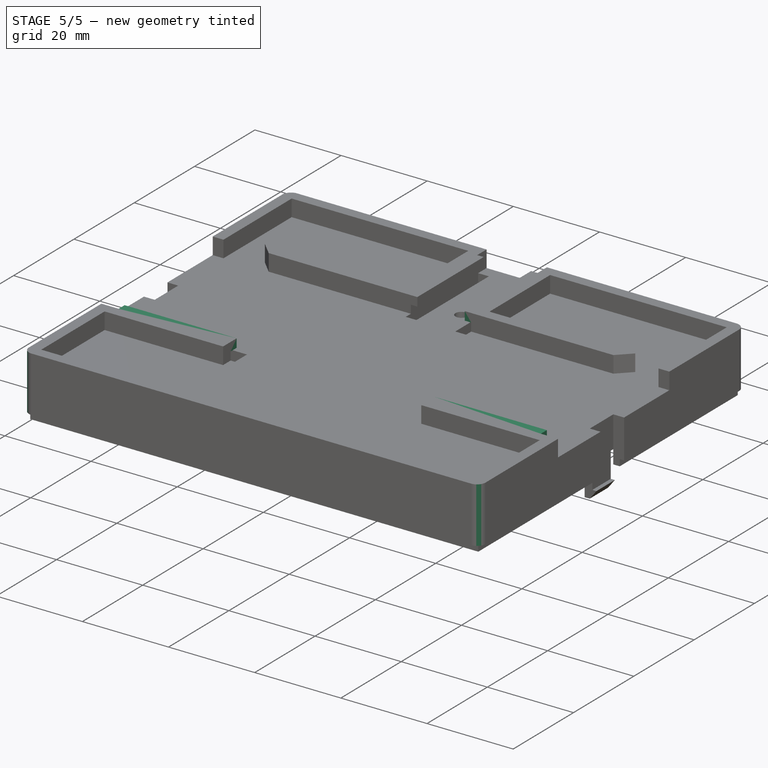
[diagram: stage 5 of 5 — iso view after this stage's code; geometry added in this stage tinted green]
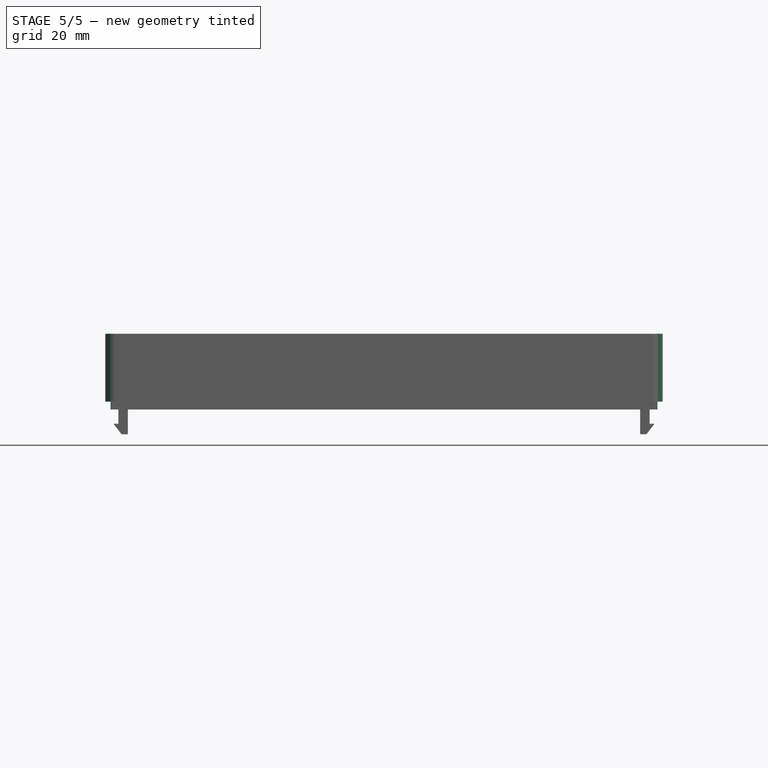
[diagram: stage 5 of 5 — front view after this stage's code; geometry added in this stage tinted green]
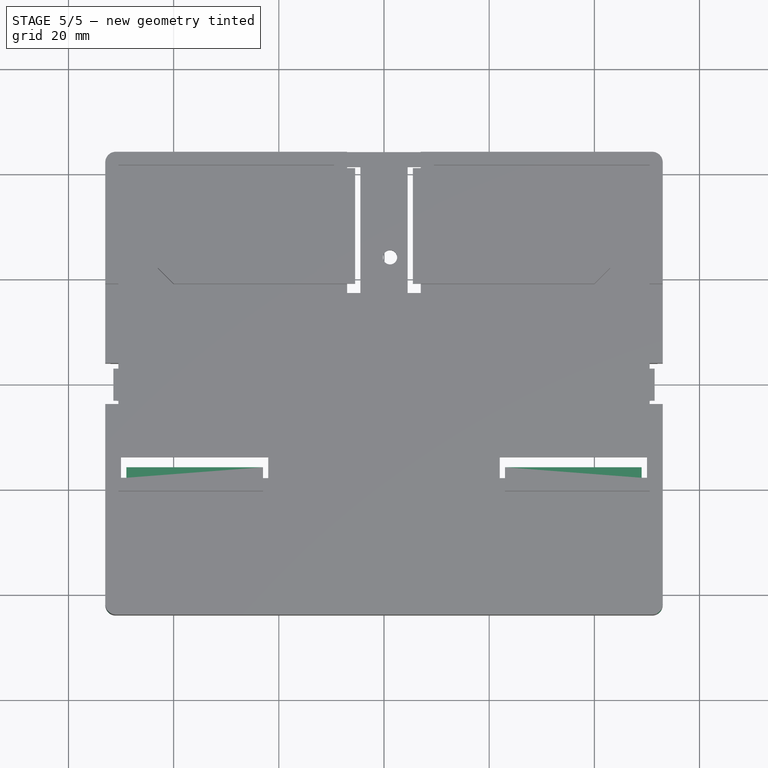
[diagram: stage 5 of 5 — top view after this stage's code; geometry added in this stage tinted green]
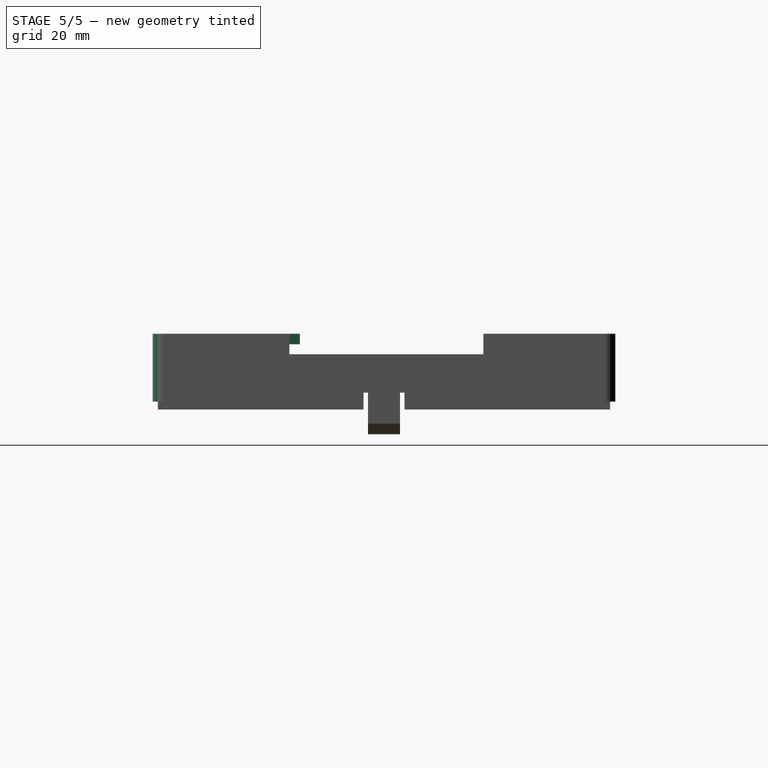
[diagram: stage 5 of 5 — right view after this stage's code; geometry added in this stage tinted green]
FEATURE [Sketcher::SketchObject] Sketch013
  ArcFitTolerance = 1e-06
  AttachmentSupport = -> [Pad005]
  ExternalGeometry = -> [Pad005]
  FullyConstrained = true
  MakeInternals = false
  MapMode = 5
  Placement = pos=(0,-18,0) rot=(0,0.707107,0.707107;3.14159rad)
  sketch-geometry (4):
    g0: LineSegment StartX=23 StartY=14.4 StartZ=0 EndX=23 EndY=12.4 EndZ=0
    g1: LineSegment StartX=23 StartY=12.4 StartZ=0 EndX=49 EndY=12.4 EndZ=0
    g2: LineSegment StartX=49 StartY=12.4 StartZ=0 EndX=49 EndY=14.4 EndZ=0
    g3: LineSegment StartX=49 StartY=14.4 StartZ=0 EndX=23 EndY=14.4 EndZ=0
  constraints (11):
    c: Coincident(g0,g1)
    c: Coincident(g1,g2)
    c: Coincident(g2,g3)
    c: Coincident(g3,g0)
    c: Vertical(g0)
    c: Vertical(g2)
    c: Horizontal(g1)
    c: Horizontal(g3)
    c: Distance(g0,g2) = 26
    c: Distance(g1,g3) = 2
    c: Coincident(g0,g-3)
FEATURE [PartDesign::Pad] Pad006
  BaseFeature = -> Pad005
  Direction = (0,1,-2e-16)
  Length = 2
  Length2 = 10
  Profile = -> Sketch013
  ReferenceAxis = -> Sketch013 [N_Axis]
  Refine = true
  Suppressed = false
  Type = 0
FEATURE [PartDesign::Mirrored] Mirrored001
  BaseFeature = -> Pad006
  MirrorPlane = -> Sketch013 [V_Axis]
  Originals = -> [Pad006,Pad005]
  Refine = true
  Suppressed = false
  TransformMode = 0
FEATURE [PartDesign::Fillet] Fillet
  Base = -> Mirrored001 [Edge202,Edge161,Edge72,Edge109]
  BaseFeature = -> Mirrored001
  Radius = 2
  Refine = true
  SupportTransform = false
  Suppressed = false
  UseAllEdges = false
FEATURE [PartDesign::Body] Body
  AllowCompound = false
  Group = -> [Sketch,Pad,Pocket,Sketch001,Pocket001,Sketch002,Pad001,Sketch003,Pad002,Mirrored,Sketch004,Sketch005,Pocket002,Sketch006,Pad003,Sketch008,Sketch009,Pocket003,Sketch010,Pad004,Sketch011,Pocket004,Sketch012,Pad005,Sketch013,Pad006,Mirrored001,Fillet]
  Origin = -> Origin
  Tip = -> Fillet
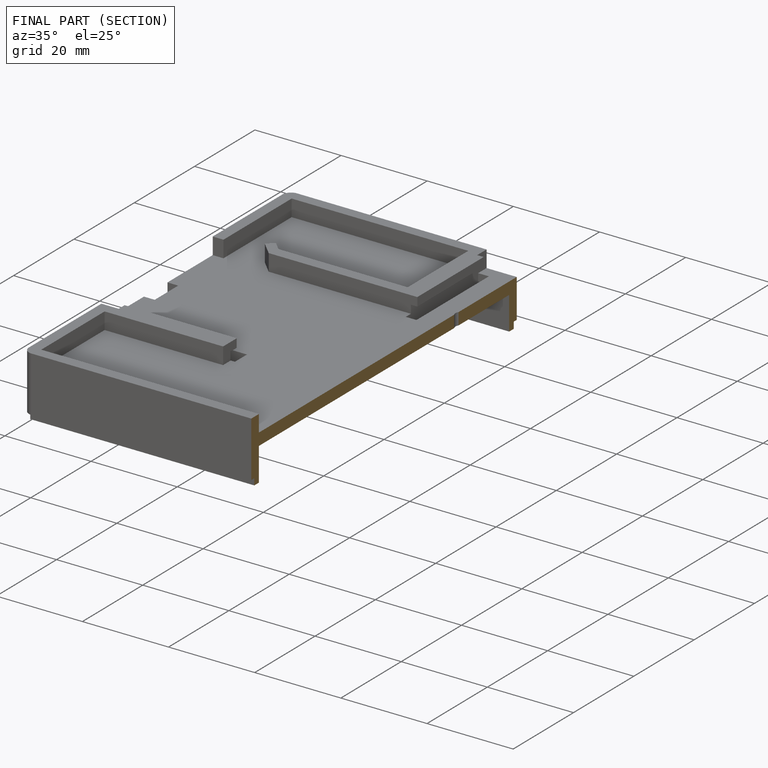
[diagram: finished part — half-section view (interior)]
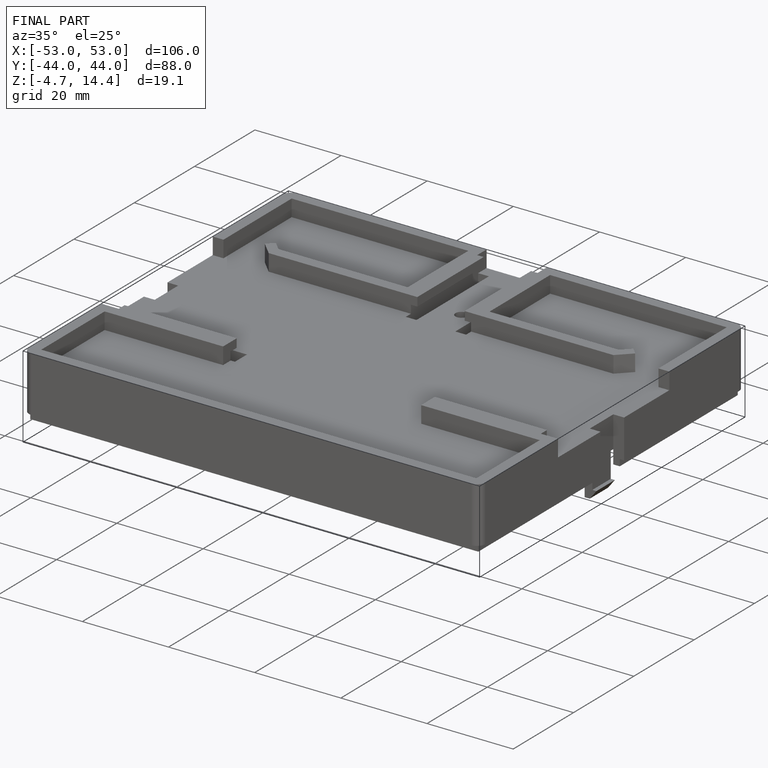
[diagram: finished part — iso view with bounding-box wireframe]
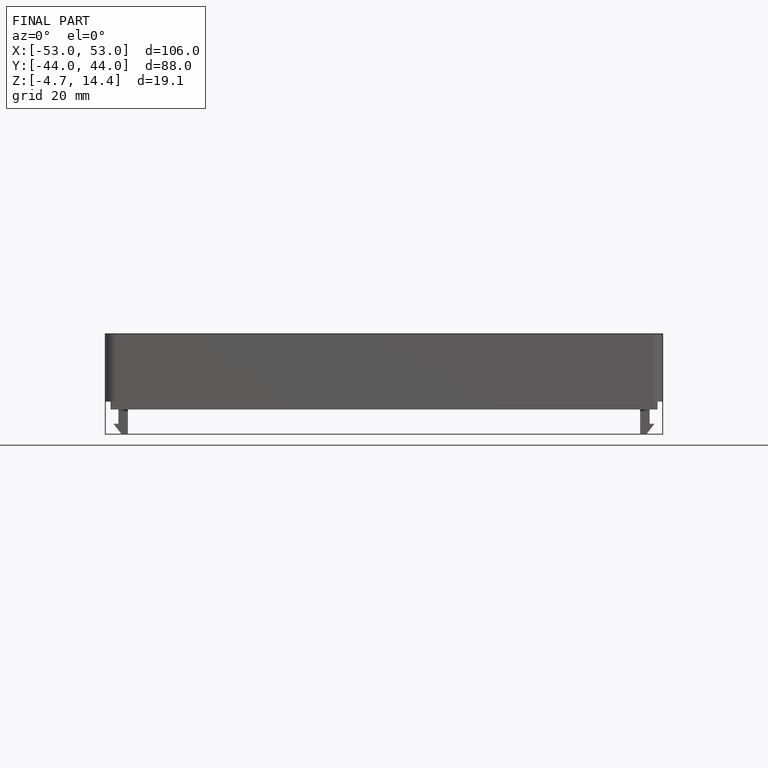
[diagram: finished part — front view with bounding-box wireframe]
